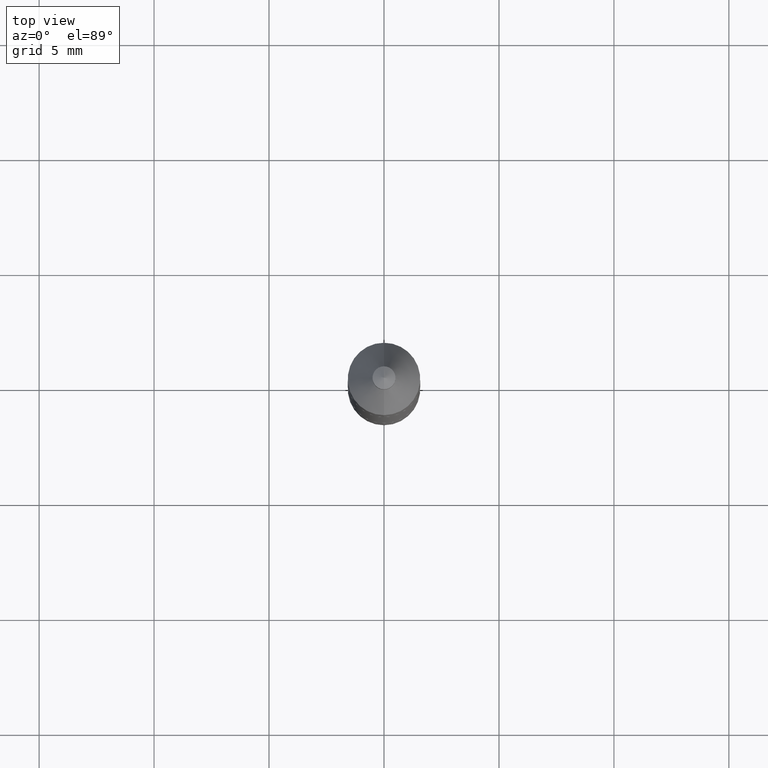
[diagram: clean part render]
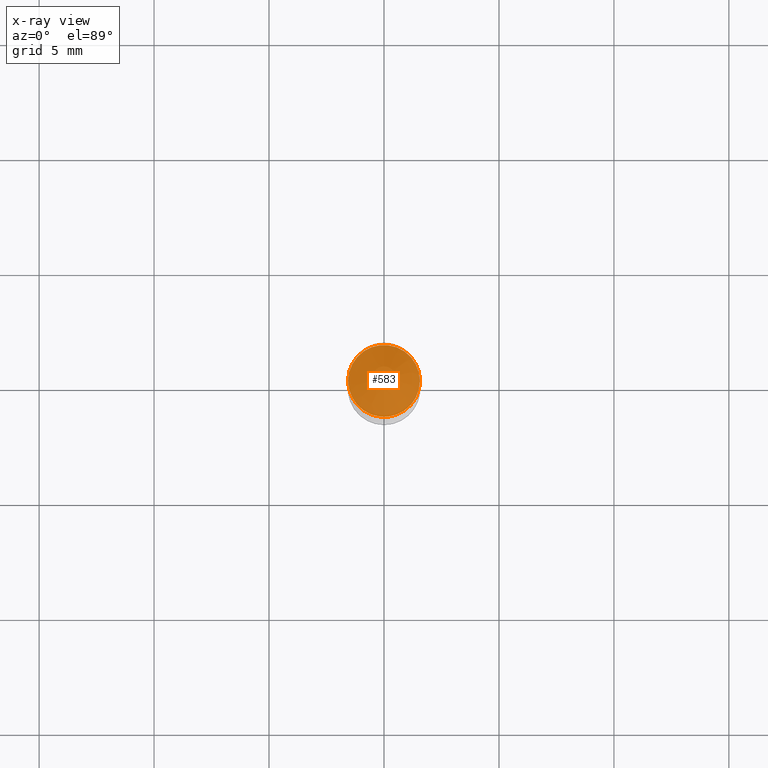
[diagram: x-ray — body ghosted, one internal face saturated and labeled with its STEP entity id]
A machine part, top view, then the same camera in x-ray: the body is ghosted and one INTERNAL B-rep face — a face not visible from any outside direction — is saturated and labeled: STEP entity #583.
In plain terms, the highlighted planar face has unit normal (-0, 0, 1).
Its self-contained STEP definition (entity closure, byte-faithful):
#27 = EDGE_CURVE ( 'NONE', #694, #193, #415, .T. ) ;
#49 = CIRCLE ( 'NONE', #548, 0.06150000000000003381 ) ;
#53 = FACE_OUTER_BOUND ( 'NONE', #84, .T. ) ;
#67 = DIRECTION ( 'NONE',  ( -2.438088387897960049E-29, 3.491481338843145188E-15, 1.000000000000000000 ) ) ;
#84 = EDGE_LOOP ( 'NONE', ( #700, #102 ) ) ;
#102 = ORIENTED_EDGE ( 'NONE', *, *, #27, .T. ) ;
#110 = AXIS2_PLACEMENT_3D ( 'NONE', #669, #291, #400 ) ;
#112 = DIRECTION ( 'NONE',  ( -2.445468806185136597E-29, 3.491481338843145583E-15, 1.000000000000000000 ) ) ;
#131 = CARTESIAN_POINT ( 'NONE',  ( -7.165223602122447572E-30, 1.023004032281041323E-15, 0.2929999999999999272 ) ) ;
#156 = EDGE_CURVE ( 'NONE', #193, #694, #49, .T. ) ;
#158 = AXIS2_PLACEMENT_3D ( 'NONE', #538, #67, #496 ) ;
#165 = PLANE ( 'NONE',  #158 ) ;
#182 = DIRECTION ( 'NONE',  ( 1.000000000000000000, -6.982962677686265922E-15, 0.000000000000000000 ) ) ;
#193 = VERTEX_POINT ( 'NONE', #495 ) ;
#291 = DIRECTION ( 'NONE',  ( -2.445468806185136597E-29, 3.491481338843145583E-15, 1.000000000000000000 ) ) ;
#400 = DIRECTION ( 'NONE',  ( 1.000000000000000000, -6.982962677686265922E-15, 0.000000000000000000 ) ) ;
#415 = CIRCLE ( 'NONE', #110, 0.06150000000000003381 ) ;
#495 = CARTESIAN_POINT ( 'NONE',  ( 0.06150000000000003381, 5.935518276033357667E-16, 0.2929999999999999272 ) ) ;
#496 = DIRECTION ( 'NONE',  ( -1.000000000000000000, 6.982962677686265922E-15, -4.876176775795935793E-29 ) ) ;
#538 = CARTESIAN_POINT ( 'NONE',  ( -7.165223602122447572E-30, 1.023004032281041323E-15, 0.2929999999999999272 ) ) ;
#548 = AXIS2_PLACEMENT_3D ( 'NONE', #131, #112, #182 ) ;
#553 = CARTESIAN_POINT ( 'NONE',  ( -0.06150000000000003381, 1.445766913308722832E-15, 0.2929999999999999272 ) ) ;
#583 = ADVANCED_FACE ( 'NONE', ( #53 ), #165, .T. ) ;
#669 = CARTESIAN_POINT ( 'NONE',  ( -7.165223602122447572E-30, 1.023004032281041323E-15, 0.2929999999999999272 ) ) ;
#694 = VERTEX_POINT ( 'NONE', #553 ) ;
#700 = ORIENTED_EDGE ( 'NONE', *, *, #156, .T. ) ;